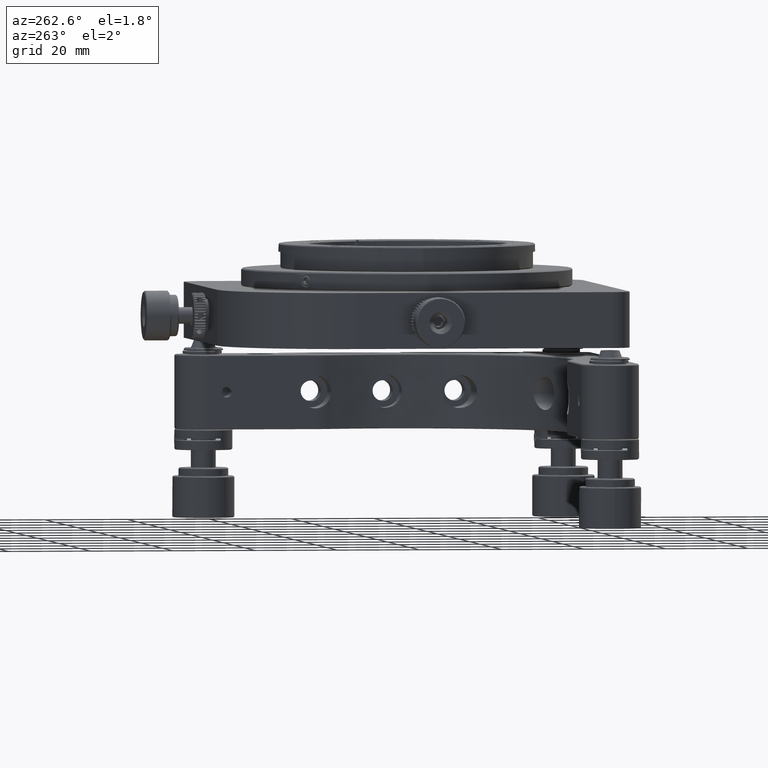
[diagram: clean part render]
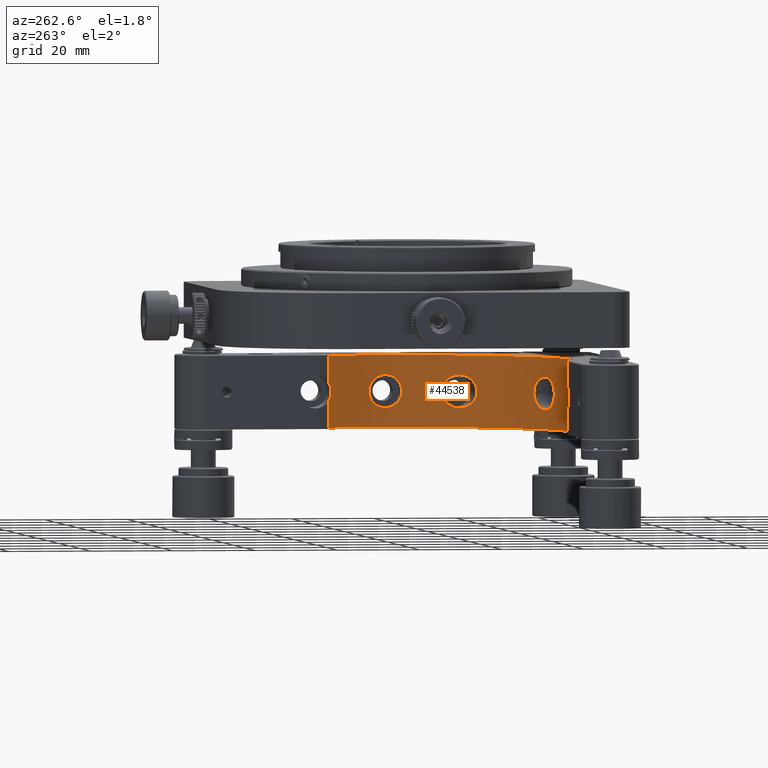
[diagram: same view with one face highlighted and labeled with its STEP entity id]
A machine part, auxiliary view. The second image highlights one B-rep face of the part: STEP entity #44538.
In plain terms, the highlighted cylindrical surface (partial cylindrical patch) has radius 40 mm, axis along (0, 0, 1).
Its self-contained STEP definition (entity closure, byte-faithful):
#8 = LINE ( 'NONE', #17264, #12068 ) ;
#42 = EDGE_LOOP ( 'NONE', ( #39245 ) ) ;
#364 = CARTESIAN_POINT ( 'NONE',  ( -78.58822482544572097, -46.20496294388248515, 12.92090599457040945 ) ) ;
#600 = CARTESIAN_POINT ( 'NONE',  ( -62.41280130026521533, -25.99421840097594938, 14.19256093324837664 ) ) ;
#871 = CARTESIAN_POINT ( 'NONE',  ( -64.32533109982881570, -30.45164574084968478, 9.538425379416574756 ) ) ;
#942 = CARTESIAN_POINT ( 'NONE',  ( -62.43305133116594163, 1.150291684711595153, 12.62985911289708341 ) ) ;
#978 = CARTESIAN_POINT ( 'NONE',  ( -98.27466856515063398, -52.41131781208401463, 9.944411854594600086 ) ) ;
#992 = CARTESIAN_POINT ( 'NONE',  ( -60.07010526578714149, -13.74102296574252158, 17.33342140422910305 ) ) ;
#1144 = CARTESIAN_POINT ( 'NONE',  ( -62.49166049717049276, -26.21178048428735607, 14.98797522078364963 ) ) ;
#1250 = CARTESIAN_POINT ( 'NONE',  ( -97.40622013348652786, -52.36297297625046099, 10.52509829443779488 ) ) ;
#1270 = CARTESIAN_POINT ( 'NONE',  ( -60.05261967088811303, -11.92562332402935610, 17.51246527787199980 ) ) ;
#1427 = CARTESIAN_POINT ( 'NONE',  ( -62.45883754701791446, -26.12146969020391296, 14.72941532435173251 ) ) ;
#1500 = CARTESIAN_POINT ( 'NONE',  ( -62.39703318236427521, 1.050151475277983693, 13.35290437278465170 ) ) ;
#1552 = CARTESIAN_POINT ( 'NONE',  ( -60.13702672295608664, -15.09377536948403176, 16.55175645530110273 ) ) ;
#1697 = CARTESIAN_POINT ( 'NONE',  ( -64.78265224955700319, -31.32541667917728034, 17.30273181322697695 ) ) ;
#1796 = CARTESIAN_POINT ( 'NONE',  ( -103.5213773170929130, -52.29934888910612045, 15.54277072938040938 ) ) ;
#1809 = CARTESIAN_POINT ( 'NONE',  ( -60.17620510299281023, -15.62836558456187674, 11.09565355599982261 ) ) ;
#2054 = CARTESIAN_POINT ( 'NONE',  ( -102.0590880791383483, -52.40010072405930686, 17.00705645753397732 ) ) ;
#2190 = ORIENTED_EDGE ( 'NONE', *, *, #18786, .F. ) ;
#2950 = CARTESIAN_POINT ( 'NONE',  ( -79.90855249991084008, -47.00961036005323734, 16.55316471493037511 ) ) ;
#3241 = CARTESIAN_POINT ( 'NONE',  ( -79.46529514161002794, -46.74726017907492093, 10.97859150082941149 ) ) ;
#3373 = LINE ( 'NONE', #20363, #15887 ) ;
#3682 = CARTESIAN_POINT ( 'NONE',  ( -83.78777938099344169, -48.99597924780007219, 9.726022259502650869 ) ) ;
#3776 = CARTESIAN_POINT ( 'NONE',  ( -60.07006735629189365, -13.73984703771276017, 9.743032470164457948 ) ) ;
#4206 = FACE_OUTER_BOUND ( 'NONE', #38980, .T. ) ;
#4282 = CARTESIAN_POINT ( 'NONE',  ( -79.02250978707202478, -46.47737064978649357, 11.63338655867019078 ) ) ;
#4538 = CARTESIAN_POINT ( 'NONE',  ( -79.15874201153383183, -46.56139794200072402, 11.40124901678248115 ) ) ;
#4730 = FACE_BOUND ( 'NONE', #39618, .T. ) ;
#4807 = CARTESIAN_POINT ( 'NONE',  ( -78.96835040784004889, -46.44366944589918944, 15.32432020067416190 ) ) ;
#5041 = CARTESIAN_POINT ( 'NONE',  ( -63.57472461735605407, -28.87025355648590619, 17.39851572254692869 ) ) ;
#5117 = CARTESIAN_POINT ( 'NONE',  ( -62.40140042354413907, 1.062351858055946119, 13.90200223389968315 ) ) ;
#5151 = CARTESIAN_POINT ( 'NONE',  ( -104.0498141723672205, -52.24951616063992788, 13.27457990578377967 ) ) ;
#5165 = CARTESIAN_POINT ( 'NONE',  ( -60.21188549607619223, -8.853509329479939183, 11.76812719869146662 ) ) ;
#5319 = CARTESIAN_POINT ( 'NONE',  ( -62.46777796622397005, -26.14631063092959096, 12.27071257874879606 ) ) ;
#5417 = CARTESIAN_POINT ( 'NONE',  ( -103.8445551514625862, -52.26973624974889532, 12.24645470898875033 ) ) ;
#5431 = CARTESIAN_POINT ( 'NONE',  ( -60.17650822053725079, -9.267906264581323939, 11.10077487373666827 ) ) ;
#5486 = CARTESIAN_POINT ( 'NONE',  ( -114.1300000000000523, -49.89000000000004320, 15.61293737022305095 ) ) ;
#5585 = CARTESIAN_POINT ( 'NONE',  ( -65.64199378022979658, -32.84942748641899612, 10.77097090909043509 ) ) ;
#5686 = CARTESIAN_POINT ( 'NONE',  ( -99.52094423166049353, -52.44732292007510210, 9.564957044240848916 ) ) ;
#5703 = CARTESIAN_POINT ( 'NONE',  ( -60.23026381789739503, -8.655444147550703349, 14.83039390020573478 ) ) ;
#5761 = CARTESIAN_POINT ( 'NONE',  ( -113.5623518580560187, -50.09859957645597461, 13.17484852493344505 ) ) ;
#5839 = CYLINDRICAL_SURFACE ( 'NONE', #47580, 40.00000000000000000 ) ;
#5860 = CARTESIAN_POINT ( 'NONE',  ( -65.38780240195437443, -32.41468239288202113, 16.69880788522447190 ) ) ;
#5938 = CARTESIAN_POINT ( 'NONE',  ( -62.48587120361408864, 1.295800049943227839, 14.96570554174137868 ) ) ;
#5974 = CARTESIAN_POINT ( 'NONE',  ( -99.78558073935545281, -52.44999992739901273, 17.53842465340639478 ) ) ;
#5992 = CARTESIAN_POINT ( 'NONE',  ( -60.08868187459044208, -14.22532445953723013, 17.13244237851193219 ) ) ;
#6047 = CARTESIAN_POINT ( 'NONE',  ( -114.1300000000000523, -49.89000000000004320, 11.46391338861008080 ) ) ;
#6130 = CARTESIAN_POINT ( 'NONE',  ( -62.82486345953082463, -27.09020804572916319, 16.34795131429981652 ) ) ;
#6145 = B_SPLINE_CURVE_WITH_KNOTS ( 'NONE', 3,
 ( #50910, #50368, #12693, #29688, #3776, #12157, #17422, #34445, #9060, #43088, #1809, #35819, #52308, #14618, #14348, #30520, #40276, #52821, #47559, #48669, #13523, #44213, #35559, #9341, #31339, #1552, #26339, #47850, #5992, #992, #39191, #43382, #31616, #44472, #1270, #27173, #14091, #13804, #48390, #22982, #10456, #48121, #34996, #51745, #18266, #5703, #52563, #35285, #23237, #27449, #9891, #6242, #31084, #5165, #30809, #5431, #17707, #22155, #34715, #52024, #17972, #10168, #43926, #40015, #26892, #9624 ),
 .UNSPECIFIED., .T., .F.,
 ( 4, 2, 2, 2, 2, 2, 2, 2, 2, 2, 2, 2, 2, 2, 2, 2, 2, 2, 2, 2, 2, 2, 2, 2, 2, 2, 2, 2, 2, 2, 2, 2, 4 ),
 ( 0.000000000000000000, 0.0007819301302609067868, 0.001563860260521813574, 0.002345790390782720360, 0.003127720521043627147, 0.003909650651304533500, 0.004691580781565440721, 0.005473510911826347941, 0.006255441042087254294, 0.007037371172348160647, 0.007819301302609067000, 0.008601231432869975088, 0.009383161563130881441, 0.01016509169339178779, 0.01094702182365269588, 0.01172895195391360224, 0.01251088208417450859, 0.01329281221443541494, 0.01407474234469632129, 0.01485667247495722938, 0.01563860260521813400, 0.01642053273547904382, 0.01720246286573995018, 0.01798439299600085653, 0.01876632312626176288, 0.01954825325652266924, 0.02033018338678357559, 0.02111211351704448194, 0.02189404364730539176, 0.02267597377756629812, 0.02345790390782720447, 0.02423983403808811082, 0.02502176416834901718 ),
 .UNSPECIFIED. ) ;
#6228 = CARTESIAN_POINT ( 'NONE',  ( -97.61153986852293940, -52.37619803155866549, 16.71996566102214032 ) ) ;
#6242 = CARTESIAN_POINT ( 'NONE',  ( -60.23783602413796956, -8.577762184847667726, 12.50199196479362485 ) ) ;
#6328 = B_SPLINE_CURVE_WITH_KNOTS ( 'NONE', 3,
 ( #39625, #871, #9215, #43806, #30972, #5585, #14235, #44089, #22574, #9772, #18694, #35163, #31487, #52458, #39903, #17589, #51898, #13676, #26211, #13402, #27046, #48276, #14490, #27328, #5860, #22859, #34599, #1697, #10324, #35705, #47431, #43251, #17858, #22303, #5041, #22040, #52710, #44359, #30396, #6130, #39077, #18134, #30685, #38796, #47723, #1144, #1427, #600, #39347, #18431, #26508, #43545, #5319, #52186, #13964, #48010, #26775, #53790, #48818, #36510, #11420, #20039, #45430, #37064, #6662, #11144 ),
 .UNSPECIFIED., .T., .F.,
 ( 4, 2, 2, 2, 2, 2, 2, 2, 2, 2, 2, 2, 2, 2, 2, 2, 2, 2, 2, 2, 2, 2, 2, 2, 2, 2, 2, 2, 2, 2, 2, 2, 4 ),
 ( 0.000000000000000000, 0.001649744674835121241, 0.003299489349670242481, 0.004124361687087805053, 0.004949234024505366758, 0.005774106361922929330, 0.006186542530631711050, 0.006598978699340493637, 0.007423851036758057076, 0.008248723374175620515, 0.009073595711593183955, 0.009898468049010747394, 0.01072334038642830563, 0.01154821272384586386, 0.01237308506126342036, 0.01319795739868097860, 0.01402282973609853683, 0.01484770207351609334, 0.01567257441093364984, 0.01649744674835120981, 0.01732231908576876978, 0.01773475525447755149, 0.01814719142318633321, 0.01897206376060390706, 0.01979693609802147744, 0.02062180843543905129, 0.02144668077285662167, 0.02227155311027419551, 0.02309642544769176936, 0.02392129778510933974, 0.02474617012252691012, 0.02557104245994448397, 0.02639591479736205781 ),
 .UNSPECIFIED. ) ;
#6592 = ORIENTED_EDGE ( 'NONE', *, *, #46868, .F. ) ;
#6662 = CARTESIAN_POINT ( 'NONE',  ( -63.95922981281756847, -29.69917712957517253, 9.538425379416571204 ) ) ;
#7861 = DIRECTION ( 'NONE',  ( 1.000000000000000000, 0.000000000000000000, 0.000000000000000000 ) ) ;
#7862 = CARTESIAN_POINT ( 'NONE',  ( -86.51022201468059336, -50.08879339935405284, 14.16554028607497706 ) ) ;
#8131 = CARTESIAN_POINT ( 'NONE',  ( -86.53052777168424825, -50.09607494219255130, 13.05649356188643218 ) ) ;
#8409 = CARTESIAN_POINT ( 'NONE',  ( -85.60648434273542762, -49.75166498897494449, 16.13272353588426355 ) ) ;
#8444 = CARTESIAN_POINT ( 'NONE',  ( -82.15326697156970681, -48.22406965203318663, 17.52650641233839934 ) ) ;
#8542 = CIRCLE ( 'NONE', #50399, 40.00000000000000000 ) ;
#8762 = CARTESIAN_POINT ( 'NONE',  ( -62.61000000000005627, 1.629999999999957483, 11.46391338861009856 ) ) ;
#8993 = CARTESIAN_POINT ( 'NONE',  ( -78.79919975890905448, -46.33835769266462279, 12.12284858450733971 ) ) ;
#9060 = CARTESIAN_POINT ( 'NONE',  ( -60.13706054711060034, -15.09412996591544953, 10.52569303412821178 ) ) ;
#9215 = CARTESIAN_POINT ( 'NONE',  ( -64.57302096268843172, -30.93410121685888825, 9.629494973479149067 ) ) ;
#9341 = CARTESIAN_POINT ( 'NONE',  ( -60.17650800187167448, -15.63209101669353984, 15.97607948142267631 ) ) ;
#9609 = CARTESIAN_POINT ( 'NONE',  ( -98.04090567244620047, -52.40010040641253397, 10.06979795527974275 ) ) ;
#9624 = CARTESIAN_POINT ( 'NONE',  ( -60.05000000000005400, -12.45000000000004015, 9.538425379416571204 ) ) ;
#9723 = CIRCLE ( 'NONE', #39160, 40.00000000000000711 ) ;
#9772 = CARTESIAN_POINT ( 'NONE',  ( -66.15462195505267573, -33.68961924345897074, 12.09333922716106891 ) ) ;
#9841 = CARTESIAN_POINT ( 'NONE',  ( -62.41934441996208704, 1.112244040747168317, 14.26478881354201711 ) ) ;
#9876 = CARTESIAN_POINT ( 'NONE',  ( -96.87163168243327505, -52.32379467747838930, 15.98119360197915562 ) ) ;
#9891 = CARTESIAN_POINT ( 'NONE',  ( -60.24788850551676944, -8.475764637223091924, 13.01509641853616372 ) ) ;
#10168 = CARTESIAN_POINT ( 'NONE',  ( -60.07010553118648488, -11.15896892195656953, 9.743432141518297840 ) ) ;
#10324 = CARTESIAN_POINT ( 'NONE',  ( -64.65833611556246296, -31.09144179281080866, 17.38002996030154179 ) ) ;
#10406 = VERTEX_POINT ( 'NONE', #8762 ) ;
#10436 = CARTESIAN_POINT ( 'NONE',  ( -96.86790626458135023, -52.32349177946279895, 11.10077487373667360 ) ) ;
#10456 = CARTESIAN_POINT ( 'NONE',  ( -60.13706084205558255, -9.805865622647546687, 16.55115381224581483 ) ) ;
#10589 = VERTEX_POINT ( 'NONE', #14579 ) ;
#11144 = CARTESIAN_POINT ( 'NONE',  ( -64.08126357515465088, -29.95000000000000995, 9.538425379416572980 ) ) ;
#11231 = VERTEX_POINT ( 'NONE', #35654 ) ;
#11338 = CARTESIAN_POINT ( 'NONE',  ( -82.55000000000005400, -48.41873642484544149, 9.538425379416571204 ) ) ;
#11420 = CARTESIAN_POINT ( 'NONE',  ( -63.29226875546774522, -28.22774116774012043, 9.919039790888207975 ) ) ;
#11469 = ORIENTED_EDGE ( 'NONE', *, *, #28933, .F. ) ;
#11734 = VERTEX_POINT ( 'NONE', #46876 ) ;
#11766 = CARTESIAN_POINT ( 'NONE',  ( -85.69815533107968974, -49.78699323100690322, 11.05614919227140192 ) ) ;
#12018 = VERTEX_POINT ( 'NONE', #12848 ) ;
#12068 = VECTOR ( 'NONE', #16733, 1000.000000000000000 ) ;
#12157 = CARTESIAN_POINT ( 'NONE',  ( -60.08862904667520866, -14.22413390331881722, 9.943823647737195515 ) ) ;
#12600 = CARTESIAN_POINT ( 'NONE',  ( -85.14206429925197028, -49.56867493712538675, 10.48022322669608286 ) ) ;
#12629 = CARTESIAN_POINT ( 'NONE',  ( -78.90974255183238029, -46.40722720875545093, 15.20180469899031550 ) ) ;
#12680 = CARTESIAN_POINT ( 'NONE',  ( -103.2283655845619279, -52.32379489700729636, 11.09565355599981906 ) ) ;
#12693 = CARTESIAN_POINT ( 'NONE',  ( -60.05261953839158906, -12.97436683576564498, 9.564384154030793894 ) ) ;
#12745 = EDGE_CURVE ( 'NONE', #40063, #52768, #44501, .T. ) ;
#12848 = CARTESIAN_POINT ( 'NONE',  ( -64.08126357515465088, -29.95000000000001705, 9.538425379416571204 ) ) ;
#12915 = CARTESIAN_POINT ( 'NONE',  ( -80.21332180059930295, -47.18565029556277324, 10.28226885392441226 ) ) ;
#13402 = CARTESIAN_POINT ( 'NONE',  ( -66.07035743715600518, -33.55445912458175428, 15.29355149994435159 ) ) ;
#13523 = CARTESIAN_POINT ( 'NONE',  ( -60.23047209008189640, -16.24674985637519598, 14.82426812560581730 ) ) ;
#13676 = CARTESIAN_POINT ( 'NONE',  ( -66.24646791077034891, -33.83515101050713270, 14.52941624560444644 ) ) ;
#13790 = CARTESIAN_POINT ( 'NONE',  ( -99.01423613003176172, -52.43740548342194785, 17.41078347474892496 ) ) ;
#13804 = CARTESIAN_POINT ( 'NONE',  ( -60.08862935547980300, -10.67585923385150082, 17.13302368634498407 ) ) ;
#13864 = CARTESIAN_POINT ( 'NONE',  ( -113.6122440407472567, -50.08065558003799111, 12.81206194529111286 ) ) ;
#13964 = CARTESIAN_POINT ( 'NONE',  ( -62.59342012523283216, -26.48677357175325753, 11.51868105838003942 ) ) ;
#14077 = CARTESIAN_POINT ( 'NONE',  ( -98.75896892195659404, -52.42989446881362170, 9.743432141518301393 ) ) ;
#14091 = CARTESIAN_POINT ( 'NONE',  ( -60.07006762574611258, -11.16014473799792128, 17.33381545809994861 ) ) ;
#14142 = CARTESIAN_POINT ( 'NONE',  ( -113.5498512393196791, -50.10307446333800385, 13.35949478658941025 ) ) ;
#14216 = CARTESIAN_POINT ( 'NONE',  ( -100.0500000000000540, -12.45000000000003659, 4.538425379416565875 ) ) ;
#14235 = CARTESIAN_POINT ( 'NONE',  ( -65.74454064360132577, -33.02103197083867059, 10.96250779556950761 ) ) ;
#14301 = CARTESIAN_POINT ( 'NONE',  ( -62.43270435493776915, 1.149329621827003711, 14.44261401158182601 ) ) ;
#14332 = CARTESIAN_POINT ( 'NONE',  ( -98.04619368848044303, -52.40037092861536649, 17.01017517486499386 ) ) ;
#14348 = CARTESIAN_POINT ( 'NONE',  ( -60.23775876067846724, -16.32144924711899847, 12.49862773196820420 ) ) ;
#14400 = CARTESIAN_POINT ( 'NONE',  ( -113.5626953909091412, -50.09847625445839725, 13.90525810098348813 ) ) ;
#14490 = CARTESIAN_POINT ( 'NONE',  ( -65.71554062931097917, -32.97289875206397625, 16.17065557480969673 ) ) ;
#14579 = CARTESIAN_POINT ( 'NONE',  ( -62.61000000000005627, 1.629999999999960814, 22.28842537941655522 ) ) ;
#14600 = CARTESIAN_POINT ( 'NONE',  ( -100.5790458343631713, -52.44732305542030559, 17.51189507046307980 ) ) ;
#14618 = CARTESIAN_POINT ( 'NONE',  ( -60.23026375025120416, -16.24455515146253859, 12.24645470898875921 ) ) ;
#14692 = VERTEX_POINT ( 'NONE', #45764 ) ;
#14877 = CARTESIAN_POINT ( 'NONE',  ( -96.07567066884355711, -52.25210268465475139, 14.06187981062750403 ) ) ;
#15859 = CARTESIAN_POINT ( 'NONE',  ( -60.05000000000005400, -12.45000000000004192, 9.538425379416571204 ) ) ;
#15887 = VECTOR ( 'NONE', #46042, 1000.000000000000000 ) ;
#15952 = CARTESIAN_POINT ( 'NONE',  ( -83.04964529395350326, -48.65858398071927837, 9.561838704073927886 ) ) ;
#16050 = CARTESIAN_POINT ( 'NONE',  ( -78.55513437495132223, -46.18382251281608575, 13.19547006093013586 ) ) ;
#16225 = CARTESIAN_POINT ( 'NONE',  ( -83.54239086194360198, -48.88586769332322746, 9.655379231942474050 ) ) ;
#16503 = CARTESIAN_POINT ( 'NONE',  ( -84.49628422659758087, -49.30292065778369448, 10.03423821505368174 ) ) ;
#16733 = DIRECTION ( 'NONE',  ( 0.000000000000000000, 0.000000000000000000, 1.000000000000000000 ) ) ;
#16788 = CARTESIAN_POINT ( 'NONE',  ( -83.64996224955498860, -48.93435091761928390, 17.39267240693110850 ) ) ;
#16862 = CARTESIAN_POINT ( 'NONE',  ( -102.4884550811810016, -52.37619834322278933, 10.35688119293075182 ) ) ;
#17264 = CARTESIAN_POINT ( 'NONE',  ( -62.61000000000005627, 1.629999999999959703, 4.538425379416565875 ) ) ;
#17358 = CARTESIAN_POINT ( 'NONE',  ( -80.01325301883606755, -47.07045672107632583, 10.43511750543989436 ) ) ;
#17409 = CARTESIAN_POINT ( 'NONE',  ( -100.0500000000000824, -52.45000000000004547, 9.538425379416571204 ) ) ;
#17422 = CARTESIAN_POINT ( 'NONE',  ( -60.09962875549406647, -14.45380007771430542, 10.06667195469716347 ) ) ;
#17589 = CARTESIAN_POINT ( 'NONE',  ( -66.32322217836996003, -33.95591855223608491, 13.71066393390205640 ) ) ;
#17707 = CARTESIAN_POINT ( 'NONE',  ( -60.16349639568194618, -9.433078720251710791, 10.89874772950348891 ) ) ;
#17858 = CARTESIAN_POINT ( 'NONE',  ( -63.91727168827872418, -29.61102118029314667, 17.53189369042732082 ) ) ;
#17958 = CARTESIAN_POINT ( 'NONE',  ( -99.52562332402938239, -52.44738032911198644, 17.51246527787199625 ) ) ;
#17972 = CARTESIAN_POINT ( 'NONE',  ( -60.08868218791606353, -10.67466856515062901, 9.944411854594601863 ) ) ;
#18134 = CARTESIAN_POINT ( 'NONE',  ( -62.66203450042753786, -26.66785690777677686, 15.82874116868751635 ) ) ;
#18213 = CARTESIAN_POINT ( 'NONE',  ( -62.41944523487126872, 1.112523698731452404, 12.81079589386876094 ) ) ;
#18250 = CARTESIAN_POINT ( 'NONE',  ( -96.04981617833996665, -52.24947900949759827, 13.28024520099222272 ) ) ;
#18266 = CARTESIAN_POINT ( 'NONE',  ( -60.21174963982348771, -8.855024065518525944, 15.31155391580821679 ) ) ;
#18431 = CARTESIAN_POINT ( 'NONE',  ( -62.39498380735899019, -25.94443615452829022, 13.36006165165159132 ) ) ;
#18536 = CARTESIAN_POINT ( 'NONE',  ( -98.27585923385156264, -52.41137064452029648, 17.13302368634498762 ) ) ;
#18694 = CARTESIAN_POINT ( 'NONE',  ( -66.21079628868376687, -33.77870888630548052, 12.34896698861586550 ) ) ;
#18786 = EDGE_CURVE ( 'NONE', #48027, #40063, #3373, .T. ) ;
#18795 = CARTESIAN_POINT ( 'NONE',  ( -104.0501838219794308, -52.24947900946548884, 13.79660600959608985 ) ) ;
#18807 = LINE ( 'NONE', #36366, #49308 ) ;
#18864 = CARTESIAN_POINT ( 'NONE',  ( -113.6493296218270785, -50.06729564506230901, 12.63423674725130219 ) ) ;
#19022 = CARTESIAN_POINT ( 'NONE',  ( -62.61000000000005627, 1.629999999999957483, 11.46391338861009856 ) ) ;
#19061 = CARTESIAN_POINT ( 'NONE',  ( -96.45350932947991396, -52.28811450392387172, 11.76812719869147195 ) ) ;
#19513 = CARTESIAN_POINT ( 'NONE',  ( -114.1300000000000523, -49.89000000000004320, 11.46391338861008080 ) ) ;
#19948 = CARTESIAN_POINT ( 'NONE',  ( -78.54596399257970063, -46.17797748096749189, 13.74881873471998261 ) ) ;
#20039 = CARTESIAN_POINT ( 'NONE',  ( -63.50098021452991759, -28.70537066088561318, 9.728303946711344352 ) ) ;
#20133 = EDGE_CURVE ( 'NONE', #48027, #10589, #9723, .T. ) ;
#20233 = CARTESIAN_POINT ( 'NONE',  ( -78.75362861600937947, -46.30970502828608204, 14.82713966649499682 ) ) ;
#20363 = CARTESIAN_POINT ( 'NONE',  ( -114.1300000000000523, -49.89000000000004320, 4.538425379416565875 ) ) ;
#20680 = CARTESIAN_POINT ( 'NONE',  ( -84.13088822425561375, -49.14674345725197213, 17.22162093789032866 ) ) ;
#21154 = ORIENTED_EDGE ( 'NONE', *, *, #46029, .F. ) ;
#21269 = CARTESIAN_POINT ( 'NONE',  ( -78.71143371140583156, -46.28298546881826070, 12.37980483219506667 ) ) ;
#21531 = CARTESIAN_POINT ( 'NONE',  ( -83.40473387579105236, -48.82321797656009466, 17.45419156516238957 ) ) ;
#22040 = CARTESIAN_POINT ( 'NONE',  ( -63.36004290972689290, -28.38478866546141077, 17.22844750911192691 ) ) ;
#22141 = CARTESIAN_POINT ( 'NONE',  ( -101.0917474994607517, -52.43725425984987254, 17.40922801296553857 ) ) ;
#22155 = CARTESIAN_POINT ( 'NONE',  ( -60.13702702374960296, -9.806220133486514001, 10.52509829443778955 ) ) ;
#22303 = CARTESIAN_POINT ( 'NONE',  ( -63.68613498081025881, -29.11565402452844253, 17.45844611717692985 ) ) ;
#22407 = CARTESIAN_POINT ( 'NONE',  ( -103.9214492471189999, -52.26224123932164645, 12.49862773196819354 ) ) ;
#22477 = CARTESIAN_POINT ( 'NONE',  ( -113.7984670193858108, -50.01315613561530427, 14.97330192996362364 ) ) ;
#22574 = CARTESIAN_POINT ( 'NONE',  ( -66.01259981173421920, -33.46126999590586593, 11.60348117108895138 ) ) ;
#22690 = CARTESIAN_POINT ( 'NONE',  ( -100.0500000000000824, -52.45000000000004547, 9.538425379416571204 ) ) ;
#22759 = CARTESIAN_POINT ( 'NONE',  ( -113.9422160468619438, -49.96061960630839138, 11.77349035060330351 ) ) ;
#22859 = CARTESIAN_POINT ( 'NONE',  ( -65.15301124576832592, -32.00138514943739665, 16.98146122725013996 ) ) ;
#22966 = CARTESIAN_POINT ( 'NONE',  ( -96.57862089551066731, -52.29934873170194720, 11.53408318264801657 ) ) ;
#22982 = CARTESIAN_POINT ( 'NONE',  ( -60.12380196844144109, -10.01153986852294686, 16.71996566102212967 ) ) ;
#23169 = DIRECTION ( 'NONE',  ( -0.000000000000000000, -0.000000000000000000, -1.000000000000000000 ) ) ;
#23222 = CARTESIAN_POINT ( 'NONE',  ( -99.00824380008361913, -52.43725402923683276, 9.667625121512134712 ) ) ;
#23237 = CARTESIAN_POINT ( 'NONE',  ( -60.25048383939223839, -8.450185827313630327, 13.80227040131292959 ) ) ;
#23419 = CARTESIAN_POINT ( 'NONE',  ( -62.61000000000005627, 1.629999999999958371, 15.61293737022303496 ) ) ;
#24245 = CARTESIAN_POINT ( 'NONE',  ( -114.1300000000000523, -49.89000000000003610, 4.538425379416565875 ) ) ;
#24387 = EDGE_CURVE ( 'NONE', #28310, #10589, #8, .T. ) ;
#24675 = EDGE_LOOP ( 'NONE', ( #11469 ) ) ;
#24856 = CARTESIAN_POINT ( 'NONE',  ( -86.13568757147554322, -49.95206040821950921, 11.74461734252362177 ) ) ;
#25000 = B_SPLINE_CURVE_WITH_KNOTS ( 'NONE', 3,
 ( #19022, #31296, #30761, #942, #18213, #39695, #1500, #43610, #5117, #9841, #14301, #5938, #43880, #47802 ),
 .UNSPECIFIED., .F., .F.,
 ( 4, 2, 2, 2, 2, 2, 4 ),
 ( 0.000000000000000000, 0.001091242056846791243, 0.001636863085270189901, 0.002182484113693588992, 0.002728105142116988083, 0.003273726170540386740, 0.004364968227387184922 ),
 .UNSPECIFIED. ) ;
#25127 = CARTESIAN_POINT ( 'NONE',  ( -82.55000000000005400, -48.41873642484544149, 9.538425379416571204 ) ) ;
#25209 = CARTESIAN_POINT ( 'NONE',  ( -101.8241339033188382, -52.41137095332486240, 9.943823647737200844 ) ) ;
#25230 = CARTESIAN_POINT ( 'NONE',  ( -114.1300000000000523, -49.89000000000004320, 15.61293737022305095 ) ) ;
#25405 = CARTESIAN_POINT ( 'NONE',  ( -85.42454893110131309, -49.68092479941781647, 16.33273306435846095 ) ) ;
#25718 = CARTESIAN_POINT ( 'NONE',  ( -80.73548547246063833, -47.47880331790357644, 17.11185874695866005 ) ) ;
#25978 = CARTESIAN_POINT ( 'NONE',  ( -82.04792788969747619, -48.17114426044710740, 9.562340782971064712 ) ) ;
#26026 = CARTESIAN_POINT ( 'NONE',  ( -100.5743668357656730, -52.44738046160851042, 9.564384154030793894 ) ) ;
#26194 = B_SPLINE_CURVE_WITH_KNOTS ( 'NONE', 3,
 ( #25127, #37425, #15952, #16225, #3682, #50817, #16503, #49991, #12600, #50555, #11766, #54441, #24856, #29320, #29589, #8131, #29052, #46086, #7862, #46351, #42160, #37997, #46617, #8409, #25405, #55007, #41893, #37703, #20680, #16788, #21531, #46943, #34088, #8444, #38558, #29911, #43016, #25718, #51122, #49817, #2950, #33813, #30184, #28329, #29620, #4807, #12629, #20233, #41159, #50853, #19948, #16050, #364, #21269, #8993, #4282, #4538, #3241, #37259, #17358, #12915, #54270, #42749, #45351, #34378, #25978, #51412, #11338 ),
 .UNSPECIFIED., .T., .F.,
 ( 4, 2, 2, 2, 2, 2, 2, 2, 2, 2, 2, 2, 2, 2, 2, 2, 2, 2, 2, 2, 2, 2, 2, 2, 2, 2, 2, 2, 2, 2, 2, 2, 2, 4 ),
 ( 0.000000000000000000, 0.0008259373620780405137, 0.001651874724156081027, 0.002477812086234121650, 0.003303749448312162055, 0.004129686810390202460, 0.004955624172468243299, 0.005781561534546283271, 0.006607498896624324110, 0.007433436258702364949, 0.008259373620780404920, 0.009085310982858444892, 0.009911248344936486598, 0.01073718570701452657, 0.01156312306909256654, 0.01238906043117060651, 0.01321499779324864822, 0.01404093515532668819, 0.01486687251740472990, 0.01569280987948276987, 0.01651874724156080984, 0.01734468460363885328, 0.01775765328467785592, 0.01817062196571686203, 0.01899655932779485343, 0.01982249668987284830, 0.02064843405195084317, 0.02147437141402883456, 0.02230030877610682943, 0.02312624613818482430, 0.02395218350026281570, 0.02477812086234080710, 0.02560405822441880544, 0.02642999558649679684 ),
 .UNSPECIFIED. ) ;
#26211 = CARTESIAN_POINT ( 'NONE',  ( -66.19716621484869279, -33.75727454074544909, 14.79431305398433949 ) ) ;
#26324 = CARTESIAN_POINT ( 'NONE',  ( -103.6449745629444834, -52.28825048478961435, 11.76529399609525584 ) ) ;
#26339 = CARTESIAN_POINT ( 'NONE',  ( -60.12401877989906751, -14.89192677702653178, 16.71723491782218218 ) ) ;
#26508 = CARTESIAN_POINT ( 'NONE',  ( -62.40273650108606773, -25.96615626646778452, 13.08351758869630821 ) ) ;
#26538 = ORIENTED_EDGE ( 'NONE', *, *, #35507, .F. ) ;
#26610 = CARTESIAN_POINT ( 'NONE',  ( -96.05018582731374011, -52.24951616060791082, 13.80227040131295091 ) ) ;
#26775 = CARTESIAN_POINT ( 'NONE',  ( -62.77513518190561115, -26.96300513638537311, 10.86442538129333713 ) ) ;
#26878 = CARTESIAN_POINT ( 'NONE',  ( -99.78559114020490028, -52.45000000000005258, 9.538425379416571204 ) ) ;
#26892 = CARTESIAN_POINT ( 'NONE',  ( -60.05000000000006111, -12.18559114020485801, 9.538425379416576533 ) ) ;
#26948 = CARTESIAN_POINT ( 'NONE',  ( -113.6502916847116893, -50.06694866883415074, 14.44699164593605367 ) ) ;
#27046 = CARTESIAN_POINT ( 'NONE',  ( -65.99151603770566510, -33.42733641321771643, 15.53269478499845668 ) ) ;
#27158 = CARTESIAN_POINT ( 'NONE',  ( -101.8253244595372138, -52.41131812540963608, 17.13244237851192153 ) ) ;
#27173 = CARTESIAN_POINT ( 'NONE',  ( -60.06259451657813031, -11.41423613003175142, 17.41078347474891785 ) ) ;
#27328 = CARTESIAN_POINT ( 'NONE',  ( -65.50105434294084716, -32.60973282190357736, 16.53715410720407419 ) ) ;
#27385 = VERTEX_POINT ( 'NONE', #31823 ) ;
#27432 = CARTESIAN_POINT ( 'NONE',  ( -103.8467498563752258, -52.26952790991817466, 14.82426812560581375 ) ) ;
#27449 = CARTESIAN_POINT ( 'NONE',  ( -60.25052099050253673, -8.449816178339919048, 13.28024520099220673 ) ) ;
#27759 = CARTESIAN_POINT ( 'NONE',  ( -114.1300000000000665, -49.89000000000003610, 22.28842537941656232 ) ) ;
#27890 = LINE ( 'NONE', #24245, #42300 ) ;
#28310 = VERTEX_POINT ( 'NONE', #23419 ) ;
#28329 = CARTESIAN_POINT ( 'NONE',  ( -79.16277896881229026, -46.56350541786104458, 15.67000082388966398 ) ) ;
#28933 = EDGE_CURVE ( 'NONE', #27385, #27385, #26194, .T. ) ;
#29052 = CARTESIAN_POINT ( 'NONE',  ( -86.55436512455030140, -50.10458627938716347, 13.33568826512175676 ) ) ;
#29320 = CARTESIAN_POINT ( 'NONE',  ( -86.34659583266521565, -50.02963995898583249, 12.24971954919566919 ) ) ;
#29400 = CARTESIAN_POINT ( 'NONE',  ( -101.0857551235108502, -52.43740571346476287, 9.666064915353645759 ) ) ;
#29589 = CARTESIAN_POINT ( 'NONE',  ( -86.42598290049240006, -50.05836670154267409, 12.51196730770197085 ) ) ;
#29620 = CARTESIAN_POINT ( 'NONE',  ( -79.09468368573945440, -46.52169250408561396, 15.55793603351545151 ) ) ;
#29688 = CARTESIAN_POINT ( 'NONE',  ( -60.06259428653530108, -13.48575512351085237, 9.666064915353642206 ) ) ;
#29719 = CARTESIAN_POINT ( 'NONE',  ( -100.0500000000000540, -12.45000000000003659, 4.788425379416550776 ) ) ;
#29911 = CARTESIAN_POINT ( 'NONE',  ( -81.42918955913859236, -47.85251883910922288, 17.38605319215626110 ) ) ;
#30158 = ORIENTED_EDGE ( 'NONE', *, *, #43747, .F. ) ;
#30184 = CARTESIAN_POINT ( 'NONE',  ( -79.38097620355301842, -46.69646656959529452, 15.99297400104914679 ) ) ;
#30298 = CARTESIAN_POINT ( 'NONE',  ( -113.7958000499433240, -50.01412879638600373, 12.11114521709174774 ) ) ;
#30396 = CARTESIAN_POINT ( 'NONE',  ( -62.98484095689524054, -27.49062722057022157, 16.70438992948557555 ) ) ;
#30520 = CARTESIAN_POINT ( 'NONE',  ( -60.24789730638994456, -16.42432924381879289, 13.01497004953243852 ) ) ;
#30685 = CARTESIAN_POINT ( 'NONE',  ( -62.63345633136122359, -26.59241435488486616, 15.71676631107037458 ) ) ;
#30761 = CARTESIAN_POINT ( 'NONE',  ( -62.48684386438477389, 1.298467019385736387, 12.10354882886951700 ) ) ;
#30793 = CARTESIAN_POINT ( 'NONE',  ( -103.9222373764994103, -52.26216401875149842, 14.57486054518268936 ) ) ;
#30809 = CARTESIAN_POINT ( 'NONE',  ( -60.20065126829816649, -8.978620895510660560, 11.53408318264801125 ) ) ;
#30972 = CARTESIAN_POINT ( 'NONE',  ( -65.31150523835790978, -32.28499727423778864, 10.25061095238118192 ) ) ;
#31070 = CARTESIAN_POINT ( 'NONE',  ( -101.3410229657424964, -52.42989473421296509, 17.33342140422909594 ) ) ;
#31084 = CARTESIAN_POINT ( 'NONE',  ( -60.23047215715345004, -8.653249449377810265, 12.25258477958837311 ) ) ;
#31296 = CARTESIAN_POINT ( 'NONE',  ( -62.53939028313637749, 1.442242343794243986, 11.77344699799353300 ) ) ;
#31325 = CARTESIAN_POINT ( 'NONE',  ( -96.57920436707117062, -52.29940532577940360, 15.54409719347681751 ) ) ;
#31339 = CARTESIAN_POINT ( 'NONE',  ( -60.16349614673426061, -15.46691802701508500, 16.17810679872712143 ) ) ;
#31487 = CARTESIAN_POINT ( 'NONE',  ( -66.28626590472332225, -33.89786040255318511, 12.88001390092824572 ) ) ;
#31601 = CARTESIAN_POINT ( 'NONE',  ( -96.45502406551851493, -52.28825036017661887, 15.31155391580822567 ) ) ;
#31616 = CARTESIAN_POINT ( 'NONE',  ( -60.04999992740202686, -12.71439729476381153, 17.53842610539658153 ) ) ;
#31823 = CARTESIAN_POINT ( 'NONE',  ( -82.55000000000006821, -48.41873642484544149, 9.538425379416571204 ) ) ;
#31893 = EDGE_CURVE ( 'NONE', #11734, #11734, #41258, .T. ) ;
#33327 = ORIENTED_EDGE ( 'NONE', *, *, #12745, .F. ) ;
#33690 = VERTEX_POINT ( 'NONE', #15859 ) ;
#33813 = CARTESIAN_POINT ( 'NONE',  ( -79.54485735742768782, -46.79506807163600257, 16.19078581016784923 ) ) ;
#33862 = CARTESIAN_POINT ( 'NONE',  ( -102.6941299659154936, -52.36293945288950624, 10.52569303412820112 ) ) ;
#34088 = CARTESIAN_POINT ( 'NONE',  ( -82.65167575095122743, -48.46909807150075267, 17.54490132002407776 ) ) ;
#34378 = CARTESIAN_POINT ( 'NONE',  ( -81.56132465832585865, -47.92173003463988579, 9.654632620939334942 ) ) ;
#34430 = CARTESIAN_POINT ( 'NONE',  ( -100.3144088597952504, -52.45000000000003837, 9.538425379416571204 ) ) ;
#34445 = CARTESIAN_POINT ( 'NONE',  ( -60.12380165677730304, -14.88845508118093086, 10.35688119293075005 ) ) ;
#34580 = DIRECTION ( 'NONE',  ( 1.000000000000000000, 0.000000000000000000, 0.000000000000000000 ) ) ;
#34599 = CARTESIAN_POINT ( 'NONE',  ( -65.03020577126409307, -31.78083506577593909, 17.10350839821300539 ) ) ;
#34715 = CARTESIAN_POINT ( 'NONE',  ( -60.12401908842250720, -10.00806823441073234, 10.35961971113655444 ) ) ;
#34978 = CARTESIAN_POINT ( 'NONE',  ( -104.0243292438188263, -52.25210269361015492, 13.01497004953242964 ) ) ;
#34996 = CARTESIAN_POINT ( 'NONE',  ( -60.17620532252172438, -9.271631682433257637, 15.98119360197914496 ) ) ;
#35143 = FACE_BOUND ( 'NONE', #42, .T. ) ;
#35163 = CARTESIAN_POINT ( 'NONE',  ( -66.27045289554237684, -33.87296851654570418, 12.74547281584699476 ) ) ;
#35268 = CARTESIAN_POINT ( 'NONE',  ( -103.6464892851678314, -52.28811462986560343, 15.30872644462721688 ) ) ;
#35285 = CARTESIAN_POINT ( 'NONE',  ( -60.24789731534533388, -8.475670668843525490, 14.06187981062748804 ) ) ;
#35507 = EDGE_CURVE ( 'NONE', #12018, #12018, #6328, .T. ) ;
#35559 = CARTESIAN_POINT ( 'NONE',  ( -60.20065111089396481, -15.92137731709291870, 15.54277072938042004 ) ) ;
#35654 = CARTESIAN_POINT ( 'NONE',  ( -114.1300000000000523, -49.89000000000004320, 4.788425379416552552 ) ) ;
#35705 = CARTESIAN_POINT ( 'NONE',  ( -64.40936777458004769, -30.61090744418106979, 17.49114804518476163 ) ) ;
#35803 = CARTESIAN_POINT ( 'NONE',  ( -103.0669180270151344, -52.33650385326585308, 16.17810679872711077 ) ) ;
#35819 = CARTESIAN_POINT ( 'NONE',  ( -60.20059451384501870, -15.92079381089213364, 11.53275035771462775 ) ) ;
#36366 = CARTESIAN_POINT ( 'NONE',  ( -62.61000000000005627, 1.629999999999957927, 4.538425379416565875 ) ) ;
#36510 = CARTESIAN_POINT ( 'NONE',  ( -63.19286764554843217, -27.99374808690026128, 10.03966797934709021 ) ) ;
#36522 = ORIENTED_EDGE ( 'NONE', *, *, #20133, .T. ) ;
#37064 = CARTESIAN_POINT ( 'NONE',  ( -63.83911979449967333, -29.44549501406185499, 9.562329514463218771 ) ) ;
#37259 = CARTESIAN_POINT ( 'NONE',  ( -79.63816144059647684, -46.85064097931822147, 10.78401052121156134 ) ) ;
#37425 = CARTESIAN_POINT ( 'NONE',  ( -82.80094181466829184, -48.54082805755738406, 9.538425379416571204 ) ) ;
#37703 = CARTESIAN_POINT ( 'NONE',  ( -84.36852250520904306, -49.24877968248905802, 17.11064814161012393 ) ) ;
#37997 = CARTESIAN_POINT ( 'NONE',  ( -86.06762338789114608, -49.92676783253962469, 15.46235536526967280 ) ) ;
#38228 = FACE_BOUND ( 'NONE', #24675, .T. ) ;
#38558 = CARTESIAN_POINT ( 'NONE',  ( -81.90886991779532877, -48.10069874446369909, 17.49435865077040120 ) ) ;
#38796 = CARTESIAN_POINT ( 'NONE',  ( -62.58069071786729864, -26.45201720511329668, 15.48333333237425968 ) ) ;
#38980 = EDGE_LOOP ( 'NONE', ( #36522, #43150, #21154, #30158, #6592, #49392, #33327, #2190 ) ) ;
#39077 = CARTESIAN_POINT ( 'NONE',  ( -62.75440336805785080, -26.90918908018052136, 16.15099264545144564 ) ) ;
#39160 = AXIS2_PLACEMENT_3D ( 'NONE', #41337, #41892, #7861 ) ;
#39176 = CARTESIAN_POINT ( 'NONE',  ( -97.03307872025169445, -52.33650360431813908, 10.89874772950349424 ) ) ;
#39191 = CARTESIAN_POINT ( 'NONE',  ( -60.06274574015024825, -13.49174749946070762, 17.40922801296553502 ) ) ;
#39245 = ORIENTED_EDGE ( 'NONE', *, *, #48245, .F. ) ;
#39347 = CARTESIAN_POINT ( 'NONE',  ( -62.39983281930972936, -25.95795924123128984, 13.91254557382167789 ) ) ;
#39448 = CARTESIAN_POINT ( 'NONE',  ( -97.40586562264761028, -52.36293915794450271, 16.55115381224581839 ) ) ;
#39618 = EDGE_LOOP ( 'NONE', ( #26538 ) ) ;
#39625 = CARTESIAN_POINT ( 'NONE',  ( -64.08126357515465088, -29.95000000000000995, 9.538425379416572980 ) ) ;
#39695 = CARTESIAN_POINT ( 'NONE',  ( -62.40152374554170223, 1.062695390909064619, 13.17159265784964894 ) ) ;
#39775 = EDGE_CURVE ( 'NONE', #52768, #11231, #27890, .T. ) ;
#39903 = CARTESIAN_POINT ( 'NONE',  ( -66.31624006509774460, -33.94496358232861155, 13.29444102014657503 ) ) ;
#40015 = CARTESIAN_POINT ( 'NONE',  ( -60.05267707992499027, -11.92094423166047967, 9.564957044240845363 ) ) ;
#40063 = VERTEX_POINT ( 'NONE', #25230 ) ;
#40261 = CARTESIAN_POINT ( 'NONE',  ( -102.6937753694840580, -52.36297327704399152, 16.55175645530110629 ) ) ;
#40276 = CARTESIAN_POINT ( 'NONE',  ( -60.25048383936016450, -16.44981417236716581, 13.27457990578379210 ) ) ;
#41159 = CARTESIAN_POINT ( 'NONE',  ( -78.67514493858065805, -46.26004839243071842, 14.56816179065454087 ) ) ;
#41258 = B_SPLINE_CURVE_WITH_KNOTS ( 'NONE', 3,
 ( #17409, #34430, #26026, #29400, #46436, #25209, #42260, #16862, #33862, #50899, #12680, #42545, #26324, #5417, #22407, #34978, #5151, #18795, #48652, #30793, #27432, #35268, #1796, #43367, #35803, #40261, #52805, #2054, #27158, #31070, #22141, #14600, #44193, #5974, #17958, #13790, #44456, #18536, #14332, #6228, #39448, #47836, #9876, #31325, #31601, #48108, #48375, #14877, #26610, #18250, #47540, #52006, #43912, #19061, #22966, #10436, #39176, #1250, #52293, #9609, #978, #14077, #23222, #5686, #26878, #22690 ),
 .UNSPECIFIED., .T., .F.,
 ( 4, 2, 2, 2, 2, 2, 2, 2, 2, 2, 2, 2, 2, 2, 2, 2, 2, 2, 2, 2, 2, 2, 2, 2, 2, 2, 2, 2, 2, 2, 2, 2, 4 ),
 ( 0.000000000000000000, 0.0007819301302609021247, 0.001563860260521804249, 0.002345790390782706049, 0.003127720521043608499, 0.003909650651304510949, 0.004691580781565412098, 0.005473510911826314114, 0.006255441042087216998, 0.007037371172348118147, 0.007819301302609021898, 0.008601231432869923046, 0.009383161563130824195, 0.01016509169339173402, 0.01094702182365264211, 0.01172895195391355193, 0.01251088208417446175, 0.01329281221443537157, 0.01407474234469628140, 0.01485667247495719295, 0.01563860260521810278, 0.01642053273547901260, 0.01720246286573992242, 0.01798439299600083224, 0.01876632312626174207, 0.01954825325652265536, 0.02033018338678356518, 0.02111211351704447500, 0.02189404364730538483, 0.02267597377756629465, 0.02345790390782720794, 0.02423983403808811776, 0.02502176416834902759 ),
 .UNSPECIFIED. ) ;
#41337 = CARTESIAN_POINT ( 'NONE',  ( -100.0500000000000540, -12.45000000000003659, 22.28842537941655522 ) ) ;
#41892 = DIRECTION ( 'NONE',  ( 0.000000000000000000, 0.000000000000000000, 1.000000000000000000 ) ) ;
#41893 = CARTESIAN_POINT ( 'NONE',  ( -84.81628716000230384, -49.43638824822582478, 16.84474388692522950 ) ) ;
#42160 = CARTESIAN_POINT ( 'NONE',  ( -86.29724962985561376, -50.01164054129450420, 14.96436405308054951 ) ) ;
#42260 = CARTESIAN_POINT ( 'NONE',  ( -102.0538000777142997, -52.40037124450600459, 10.06667195469715992 ) ) ;
#42300 = VECTOR ( 'NONE', #23169, 1000.000000000000000 ) ;
#42545 = CARTESIAN_POINT ( 'NONE',  ( -103.5207938108921155, -52.29940548615507367, 11.53275035771461887 ) ) ;
#42749 = CARTESIAN_POINT ( 'NONE',  ( -80.86305820517620191, -47.54885878306586022, 9.903102934496015308 ) ) ;
#43016 = CARTESIAN_POINT ( 'NONE',  ( -81.19224645543502561, -47.72680065668299676, 17.30915399801748578 ) ) ;
#43088 = CARTESIAN_POINT ( 'NONE',  ( -60.16319884874147306, -15.46284798266170313, 10.89442717700226204 ) ) ;
#43150 = ORIENTED_EDGE ( 'NONE', *, *, #24387, .F. ) ;
#43251 = CARTESIAN_POINT ( 'NONE',  ( -64.03766342265740263, -29.86233497111604862, 17.54530009513153388 ) ) ;
#43367 = CARTESIAN_POINT ( 'NONE',  ( -103.2320910166935306, -52.32349199812841078, 15.97607948142267631 ) ) ;
#43382 = CARTESIAN_POINT ( 'NONE',  ( -60.05267694457980099, -12.97904583436312720, 17.51189507046308691 ) ) ;
#43526 = FACE_BOUND ( 'NONE', #53402, .T. ) ;
#43545 = CARTESIAN_POINT ( 'NONE',  ( -62.43945025723849085, -26.06798359609436488, 12.53448283570726041 ) ) ;
#43610 = CARTESIAN_POINT ( 'NONE',  ( -62.39692553666210273, 1.049851239319576246, 13.71735597224372327 ) ) ;
#43747 = EDGE_CURVE ( 'NONE', #14692, #10406, #18807, .T. ) ;
#43806 = CARTESIAN_POINT ( 'NONE',  ( -65.07259232235706747, -31.86285634729973992, 9.990302957898336444 ) ) ;
#43880 = CARTESIAN_POINT ( 'NONE',  ( -62.53938039369169388, 1.442216046861841461, 15.30336040822981580 ) ) ;
#43912 = CARTESIAN_POINT ( 'NONE',  ( -96.25324944937780458, -52.26952784284662101, 12.25258477958837311 ) ) ;
#43926 = CARTESIAN_POINT ( 'NONE',  ( -60.06274597076329513, -11.40824380008356975, 9.667625121512132935 ) ) ;
#43989 = CARTESIAN_POINT ( 'NONE',  ( -113.5501514752780707, -50.10296681763583138, 13.72394638604848538 ) ) ;
#44089 = CARTESIAN_POINT ( 'NONE',  ( -65.92960422569535694, -33.32655359975874632, 11.37845441835204952 ) ) ;
#44193 = CARTESIAN_POINT ( 'NONE',  ( -100.3143972947638218, -52.45000007259802999, 17.53842610539657443 ) ) ;
#44213 = CARTESIAN_POINT ( 'NONE',  ( -60.21188537013451025, -16.04648928516776252, 15.30872644462721865 ) ) ;
#44359 = CARTESIAN_POINT ( 'NONE',  ( -63.07158610893421979, -27.70304808655007278, 16.85778434164019401 ) ) ;
#44384 = ORIENTED_EDGE ( 'NONE', *, *, #31893, .F. ) ;
#44456 = CARTESIAN_POINT ( 'NONE',  ( -98.76014473799799021, -52.42993237425399400, 17.33381545809994506 ) ) ;
#44472 = CARTESIAN_POINT ( 'NONE',  ( -60.05000007260107964, -12.18558073935543362, 17.53842465340640189 ) ) ;
#44501 = B_SPLINE_CURVE_WITH_KNOTS ( 'NONE', 3,
 ( #5486, #47622, #22477, #26948, #52617, #14400, #43989, #14142, #5761, #13864, #18864, #30298, #22759, #6047 ),
 .UNSPECIFIED., .F., .F.,
 ( 4, 2, 2, 2, 2, 2, 4 ),
 ( 1.734723475976807094E-18, 0.001091242056846802085, 0.001636863085270205296, 0.002182484113693608941, 0.002728105142117012803, 0.003273726170540415797, 0.004364968227387223086 ),
 .UNSPECIFIED. ) ;
#44538 = ADVANCED_FACE ( 'NONE', ( #4206, #38228, #43526, #4730, #35143 ), #5839, .F. ) ;
#45351 = CARTESIAN_POINT ( 'NONE',  ( -81.32441001393563340, -47.79714844206476698, 9.722764088928988357 ) ) ;
#45430 = CARTESIAN_POINT ( 'NONE',  ( -63.61026316883155829, -28.94909923920947037, 9.657438227262558073 ) ) ;
#45764 = CARTESIAN_POINT ( 'NONE',  ( -62.61000000000005627, 1.629999999999956373, 4.788425379416550776 ) ) ;
#46029 = EDGE_CURVE ( 'NONE', #10406, #28310, #25000, .T. ) ;
#46042 = DIRECTION ( 'NONE',  ( -0.000000000000000000, -0.000000000000000000, -1.000000000000000000 ) ) ;
#46086 = CARTESIAN_POINT ( 'NONE',  ( -86.54430343302880146, -50.10097859025933786, 13.88711216310822749 ) ) ;
#46351 = CARTESIAN_POINT ( 'NONE',  ( -86.38608163645372429, -50.04390497680893901, 14.70509122282534875 ) ) ;
#46436 = CARTESIAN_POINT ( 'NONE',  ( -101.3398470377127865, -52.42993264370820583, 9.743032470164457948 ) ) ;
#46617 = CARTESIAN_POINT ( 'NONE',  ( -85.92656146558071839, -49.87402756860686281, 15.69974722754417407 ) ) ;
#46750 = DIRECTION ( 'NONE',  ( 0.000000000000000000, 0.000000000000000000, 1.000000000000000000 ) ) ;
#46868 = EDGE_CURVE ( 'NONE', #11231, #14692, #8542, .T. ) ;
#46876 = CARTESIAN_POINT ( 'NONE',  ( -100.0500000000000540, -52.45000000000003837, 9.538425379416571204 ) ) ;
#46943 = CARTESIAN_POINT ( 'NONE',  ( -82.90539388959213341, -48.59053612821836765, 17.53060398302333667 ) ) ;
#47431 = CARTESIAN_POINT ( 'NONE',  ( -64.28398356106505673, -30.36284072937595369, 17.52493922949829042 ) ) ;
#47540 = CARTESIAN_POINT ( 'NONE',  ( -96.07576463722308802, -52.25211149448333003, 13.01509641853618682 ) ) ;
#47559 = CARTESIAN_POINT ( 'NONE',  ( -60.24788849621095466, -16.42423527183120413, 14.06175525332806941 ) ) ;
#47580 = AXIS2_PLACEMENT_3D ( 'NONE', #14216, #48258, #34580 ) ;
#47622 = CARTESIAN_POINT ( 'NONE',  ( -113.9422423437943195, -49.96060971686372909, 15.30340376083961296 ) ) ;
#47723 = CARTESIAN_POINT ( 'NONE',  ( -62.55638860096930642, -26.38674895143596899, 15.36109154124453902 ) ) ;
#47802 = CARTESIAN_POINT ( 'NONE',  ( -62.61000000000005627, 1.629999999999958371, 15.61293737022303496 ) ) ;
#47836 = CARTESIAN_POINT ( 'NONE',  ( -97.03714877093344171, -52.33680090334128465, 16.18241983610266743 ) ) ;
#47850 = CARTESIAN_POINT ( 'NONE',  ( -60.09989927594080683, -14.45908807913831673, 17.00705645753398443 ) ) ;
#48010 = CARTESIAN_POINT ( 'NONE',  ( -62.70866358179218025, -26.79053634707260656, 11.07041123004529659 ) ) ;
#48027 = VERTEX_POINT ( 'NONE', #27759 ) ;
#48108 = CARTESIAN_POINT ( 'NONE',  ( -96.25544414755071898, -52.26973618210269024, 14.83039390020574366 ) ) ;
#48121 = CARTESIAN_POINT ( 'NONE',  ( -60.16319909665881482, -9.437148770933418973, 16.18241983610266388 ) ) ;
#48245 = EDGE_CURVE ( 'NONE', #33690, #33690, #6145, .T. ) ;
#48258 = DIRECTION ( 'NONE',  ( 0.000000000000000000, 0.000000000000000000, 1.000000000000000000 ) ) ;
#48276 = CARTESIAN_POINT ( 'NONE',  ( -65.81422090142571335, -33.13672043405609458, 15.97025429360834536 ) ) ;
#48375 = CARTESIAN_POINT ( 'NONE',  ( -96.17855030604742694, -52.26224119563588744, 14.57822124459358015 ) ) ;
#48390 = CARTESIAN_POINT ( 'NONE',  ( -60.09962907138473298, -10.44619368848040963, 17.01017517486499386 ) ) ;
#48652 = CARTESIAN_POINT ( 'NONE',  ( -104.0242352718312873, -52.25211150378913771, 14.06175525332806409 ) ) ;
#48665 = DIRECTION ( 'NONE',  ( 0.000000000000000000, 0.000000000000000000, 1.000000000000000000 ) ) ;
#48669 = CARTESIAN_POINT ( 'NONE',  ( -60.23783598124857974, -16.32223737649939110, 14.57486054518269469 ) ) ;
#48818 = CARTESIAN_POINT ( 'NONE',  ( -63.01104389515501936, -27.55536463134670200, 10.32377977791679236 ) ) ;
#49308 = VECTOR ( 'NONE', #48665, 1000.000000000000000 ) ;
#49392 = ORIENTED_EDGE ( 'NONE', *, *, #39775, .F. ) ;
#49817 = CARTESIAN_POINT ( 'NONE',  ( -80.10544087084758758, -47.12377778501659265, 16.71429371875675329 ) ) ;
#49991 = CARTESIAN_POINT ( 'NONE',  ( -84.93276276086054111, -49.48410554643194814, 10.31510541406336934 ) ) ;
#50368 = CARTESIAN_POINT ( 'NONE',  ( -60.05000000000004690, -12.71440885979522584, 9.538425379416567651 ) ) ;
#50399 = AXIS2_PLACEMENT_3D ( 'NONE', #29719, #46750, #54855 ) ;
#50555 = CARTESIAN_POINT ( 'NONE',  ( -85.52579973246811562, -49.72050016479847301, 10.85216148869329267 ) ) ;
#50817 = CARTESIAN_POINT ( 'NONE',  ( -84.26711549317938932, -49.20552985995765027, 9.916543309577006582 ) ) ;
#50853 = CARTESIAN_POINT ( 'NONE',  ( -78.57102079365709812, -46.19399581330997506, 14.03095283969427598 ) ) ;
#50899 = CARTESIAN_POINT ( 'NONE',  ( -103.0628479826617081, -52.33680115125862642, 10.89442717700225849 ) ) ;
#50910 = CARTESIAN_POINT ( 'NONE',  ( -60.05000000000005400, -12.45000000000004015, 9.538425379416571204 ) ) ;
#51122 = CARTESIAN_POINT ( 'NONE',  ( -80.51821051128358420, -47.35795760438347202, 16.99296449748819882 ) ) ;
#51412 = CARTESIAN_POINT ( 'NONE',  ( -82.29905818533183037, -48.29664479213350603, 9.538425379416571204 ) ) ;
#51745 = CARTESIAN_POINT ( 'NONE',  ( -60.20059467422068167, -8.979204367071165649, 15.54409719347681218 ) ) ;
#51898 = CARTESIAN_POINT ( 'NONE',  ( -66.30955933400569791, -33.93455559499176388, 13.98539068202094882 ) ) ;
#52006 = CARTESIAN_POINT ( 'NONE',  ( -96.17776218484766559, -52.26216397586210149, 12.50199196479363550 ) ) ;
#52024 = CARTESIAN_POINT ( 'NONE',  ( -60.09989959358755840, -10.44090567244617063, 10.06979795527973920 ) ) ;
#52186 = CARTESIAN_POINT ( 'NONE',  ( -62.54442360502632425, -26.35482208357046829, 11.76364530555566468 ) ) ;
#52293 = CARTESIAN_POINT ( 'NONE',  ( -97.60806823441075153, -52.37598091157758518, 10.35961971113656688 ) ) ;
#52308 = CARTESIAN_POINT ( 'NONE',  ( -60.21174951521049223, -16.04497456294445001, 11.76529399609526116 ) ) ;
#52458 = CARTESIAN_POINT ( 'NONE',  ( -66.30918277616380863, -33.93389417614124426, 13.15411479361334024 ) ) ;
#52563 = CARTESIAN_POINT ( 'NONE',  ( -60.23775880436421204, -8.578550306047377561, 14.57822124459355706 ) ) ;
#52617 = CARTESIAN_POINT ( 'NONE',  ( -113.6125236987315361, -50.08055476512883075, 14.26605486496437791 ) ) ;
#52710 = CARTESIAN_POINT ( 'NONE',  ( -63.25885759534649821, -28.14937611467675893, 17.11958307561679149 ) ) ;
#52768 = VERTEX_POINT ( 'NONE', #19513 ) ;
#52805 = CARTESIAN_POINT ( 'NONE',  ( -102.4919267770265492, -52.37598122010102486, 16.71723491782218929 ) ) ;
#52821 = CARTESIAN_POINT ( 'NONE',  ( -60.25052099053461774, -16.45018382197942231, 13.79660600959610051 ) ) ;
#53402 = EDGE_LOOP ( 'NONE', ( #44384 ) ) ;
#53790 = CARTESIAN_POINT ( 'NONE',  ( -62.92736651480024079, -27.34808539442171949, 10.48843280721223259 ) ) ;
#54270 = CARTESIAN_POINT ( 'NONE',  ( -80.63736381912929119, -47.42440149525590698, 10.01643117645650527 ) ) ;
#54441 = CARTESIAN_POINT ( 'NONE',  ( -86.00257817743508326, -49.90258935069770985, 11.50071073144145295 ) ) ;
#54855 = DIRECTION ( 'NONE',  ( 1.000000000000000000, 0.000000000000000000, 0.000000000000000000 ) ) ;
#55007 = CARTESIAN_POINT ( 'NONE',  ( -85.02796151373158295, -49.52268455488119514, 16.68975743616429241 ) ) ;